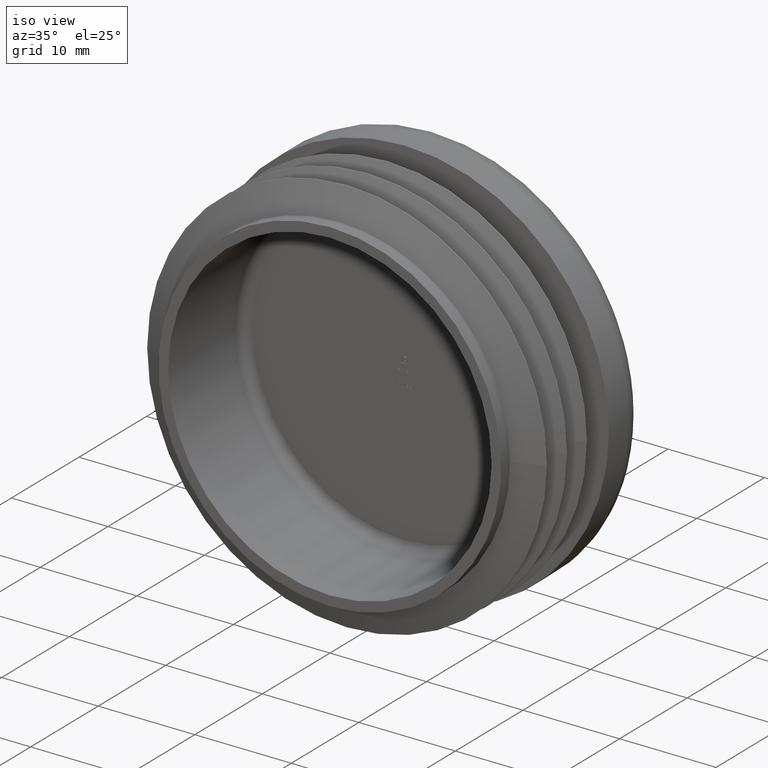
[diagram: clean part render]
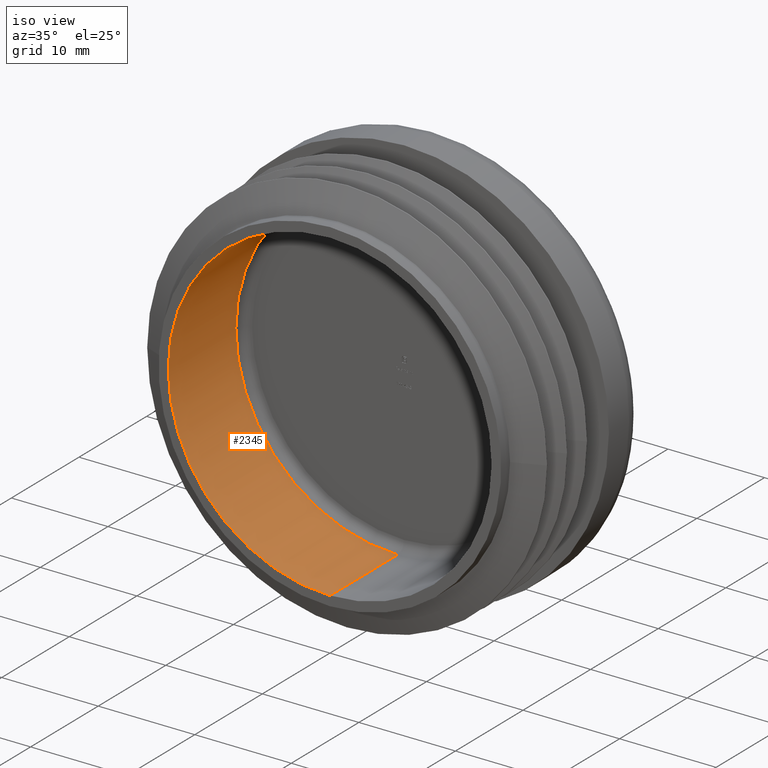
[diagram: same view with one face highlighted and labeled with its STEP entity id]
A machine part, iso view. The second image highlights one B-rep face of the part: STEP entity #2345.
In plain terms, the highlighted cylindrical surface (partial cylindrical patch) has radius 16.75 mm, axis along (-0, -1, -0).
Its self-contained STEP definition (entity closure, byte-faithful):
#79 = ORIENTED_EDGE ( 'NONE', *, *, #5640, .T. ) ;
#244 = CIRCLE ( 'NONE', #9095, 16.75000000000000000 ) ;
#254 = LINE ( 'NONE', #7350, #4427 ) ;
#590 = ORIENTED_EDGE ( 'NONE', *, *, #3425, .T. ) ;
#956 = VERTEX_POINT ( 'NONE', #1944 ) ;
#1182 = VERTEX_POINT ( 'NONE', #3694 ) ;
#1499 = EDGE_LOOP ( 'NONE', ( #590, #79, #10506, #9305 ) ) ;
#1944 = CARTESIAN_POINT ( 'NONE',  ( 2.051283388571816887E-15, 9.999999999999998224, 16.75000000000000000 ) ) ;
#2077 = VERTEX_POINT ( 'NONE', #5573 ) ;
#2137 = CARTESIAN_POINT ( 'NONE',  ( 0.000000000000000000, 0.000000000000000000, 0.000000000000000000 ) ) ;
#2345 = ADVANCED_FACE ( 'NONE', ( #2379 ), #11929, .F. ) ;
#2379 = FACE_OUTER_BOUND ( 'NONE', #1499, .T. ) ;
#3128 = DIRECTION ( 'NONE',  ( 0.000000000000000000, 0.000000000000000000, -1.000000000000000000 ) ) ;
#3351 = DIRECTION ( 'NONE',  ( -0.000000000000000000, -1.000000000000000000, -0.000000000000000000 ) ) ;
#3425 = EDGE_CURVE ( 'NONE', #1182, #956, #7939, .T. ) ;
#3694 = CARTESIAN_POINT ( 'NONE',  ( 0.000000000000000000, 9.999999999999998224, -16.75000000000000000 ) ) ;
#3985 = CARTESIAN_POINT ( 'NONE',  ( 0.000000000000000000, 9.999999999999998224, 0.000000000000000000 ) ) ;
#4427 = VECTOR ( 'NONE', #3351, 1000.000000000000000 ) ;
#4674 = DIRECTION ( 'NONE',  ( -0.000000000000000000, -1.000000000000000000, -0.000000000000000000 ) ) ;
#4777 = VERTEX_POINT ( 'NONE', #4990 ) ;
#4990 = CARTESIAN_POINT ( 'NONE',  ( 2.051283388571816887E-15, 0.000000000000000000, 16.75000000000000000 ) ) ;
#5432 = CARTESIAN_POINT ( 'NONE',  ( 0.000000000000000000, 11.00000000000000000, 0.000000000000000000 ) ) ;
#5551 = CARTESIAN_POINT ( 'NONE',  ( 0.000000000000000000, 11.00000000000000000, -16.75000000000000000 ) ) ;
#5573 = CARTESIAN_POINT ( 'NONE',  ( 0.000000000000000000, 0.000000000000000000, -16.75000000000000000 ) ) ;
#5640 = EDGE_CURVE ( 'NONE', #956, #4777, #254, .T. ) ;
#5923 = VECTOR ( 'NONE', #4674, 1000.000000000000000 ) ;
#6141 = EDGE_CURVE ( 'NONE', #4777, #2077, #244, .T. ) ;
#6350 = AXIS2_PLACEMENT_3D ( 'NONE', #5432, #11213, #10211 ) ;
#7350 = CARTESIAN_POINT ( 'NONE',  ( 2.051283388571816887E-15, 11.00000000000000000, 16.75000000000000000 ) ) ;
#7939 = CIRCLE ( 'NONE', #8354, 16.75000000000000000 ) ;
#8354 = AXIS2_PLACEMENT_3D ( 'NONE', #3985, #11804, #9792 ) ;
#8464 = LINE ( 'NONE', #5551, #5923 ) ;
#8869 = DIRECTION ( 'NONE',  ( -0.000000000000000000, -1.000000000000000000, -0.000000000000000000 ) ) ;
#9095 = AXIS2_PLACEMENT_3D ( 'NONE', #2137, #8869, #3128 ) ;
#9305 = ORIENTED_EDGE ( 'NONE', *, *, #11193, .F. ) ;
#9792 = DIRECTION ( 'NONE',  ( 0.000000000000000000, 0.000000000000000000, -1.000000000000000000 ) ) ;
#10211 = DIRECTION ( 'NONE',  ( 0.000000000000000000, 0.000000000000000000, -1.000000000000000000 ) ) ;
#10506 = ORIENTED_EDGE ( 'NONE', *, *, #6141, .T. ) ;
#11193 = EDGE_CURVE ( 'NONE', #1182, #2077, #8464, .T. ) ;
#11213 = DIRECTION ( 'NONE',  ( -0.000000000000000000, -1.000000000000000000, -0.000000000000000000 ) ) ;
#11804 = DIRECTION ( 'NONE',  ( 0.000000000000000000, 1.000000000000000000, 0.000000000000000000 ) ) ;
#11929 = CYLINDRICAL_SURFACE ( 'NONE', #6350, 16.75000000000000000 ) ;